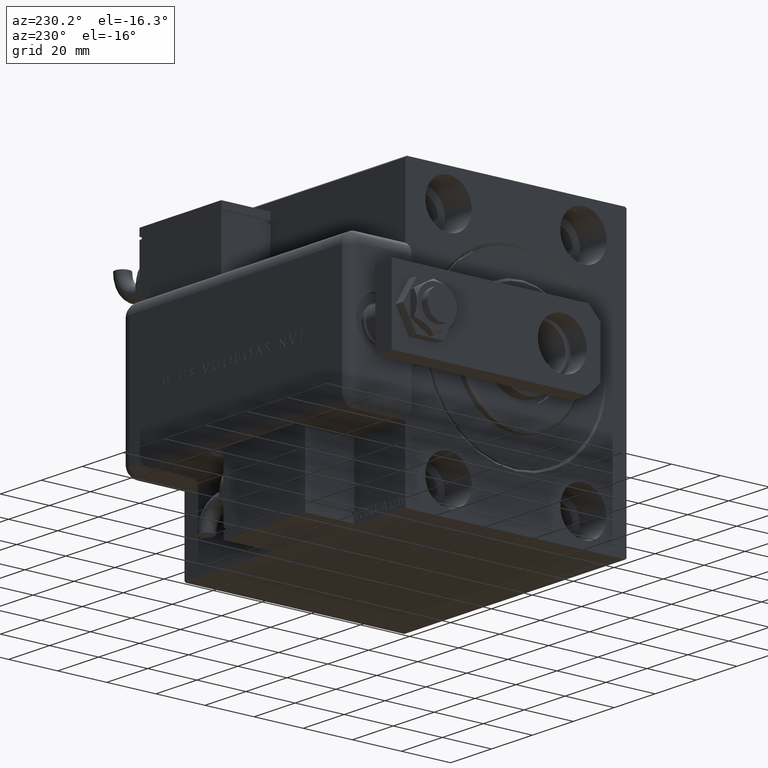
[diagram: clean part render]
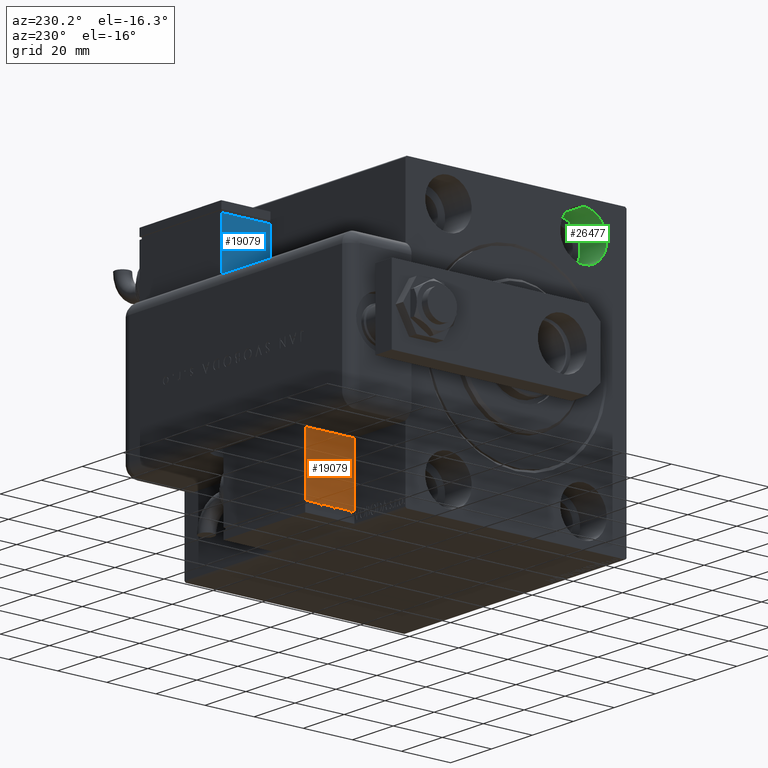
[diagram: same view with three faces highlighted in distinct colors, each labeled with its STEP entity id]
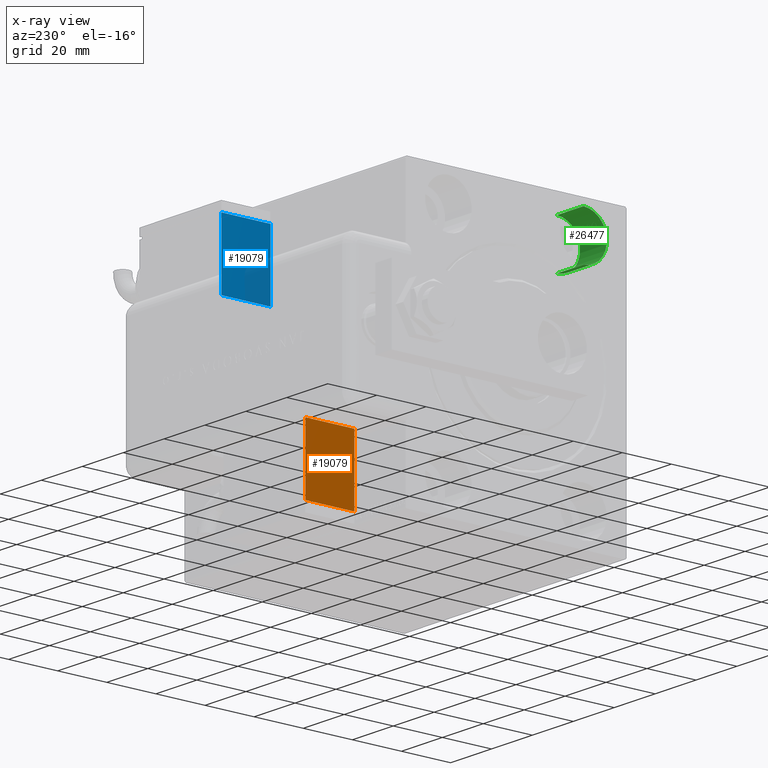
[diagram: x-ray of the same camera — body ghosted, the three highlighted faces saturated]
A machine part, auxiliary view with three faces highlighted in distinct colors.
The next image is the same camera in x-ray (body ghosted, the three faces saturated) — at least one of them is partly hidden behind the body in this view.
Their STEP definitions:

[orange] entity #19079 — the highlighted planar face has unit normal (1, 0, -0).
#937 = CARTESIAN_POINT ( 'NONE',  ( 20.00000000000005329, -13.49999999999996092, -10.00000000000000000 ) ) ;
#2348 = VECTOR ( 'NONE', #38507, 1000.000000000000000 ) ;
#3201 = ORIENTED_EDGE ( 'NONE', *, *, #44204, .T. ) ;
#4578 = DIRECTION ( 'NONE',  ( 1.284980352575412699E-16, 1.000000000000000000, 0.000000000000000000 ) ) ;
#5640 = ORIENTED_EDGE ( 'NONE', *, *, #32843, .T. ) ;
#8268 = LINE ( 'NONE', #45225, #22323 ) ;
#10745 = DIRECTION ( 'NONE',  ( -1.000000000000000000, 1.284980352575412699E-16, 0.000000000000000000 ) ) ;
#13481 = VECTOR ( 'NONE', #4578, 1000.000000000000000 ) ;
#15394 = VERTEX_POINT ( 'NONE', #26583 ) ;
#15872 = CARTESIAN_POINT ( 'NONE',  ( 20.00000000000005329, -13.49999999999996092, -10.00000000000000000 ) ) ;
#16111 = CARTESIAN_POINT ( 'NONE',  ( 20.00000000000005329, -13.49999999999996092, 10.00000000000000000 ) ) ;
#16881 = EDGE_CURVE ( 'NONE', #15394, #42015, #8268, .T. ) ;
#17785 = LINE ( 'NONE', #27479, #27538 ) ;
#18566 = ORIENTED_EDGE ( 'NONE', *, *, #42788, .F. ) ;
#19009 = VERTEX_POINT ( 'NONE', #15872 ) ;
#19079 = ADVANCED_FACE ( 'NONE', ( #24680 ), #52520, .F. ) ;
#20009 = CARTESIAN_POINT ( 'NONE',  ( 20.00000000000005329, -13.49999999999996092, 10.00000000000000000 ) ) ;
#21061 = AXIS2_PLACEMENT_3D ( 'NONE', #38320, #10745, #48288 ) ;
#22323 = VECTOR ( 'NONE', #40709, 1000.000000000000000 ) ;
#23347 = LINE ( 'NONE', #20009, #2348 ) ;
#23934 = LINE ( 'NONE', #937, #13481 ) ;
#24680 = FACE_OUTER_BOUND ( 'NONE', #58937, .T. ) ;
#26583 = CARTESIAN_POINT ( 'NONE',  ( 20.00000000000005684, 13.50000000000003730, 10.00000000000000000 ) ) ;
#27479 = CARTESIAN_POINT ( 'NONE',  ( 20.00000000000005329, -13.49999999999996092, 10.00000000000000000 ) ) ;
#27526 = VERTEX_POINT ( 'NONE', #16111 ) ;
#27538 = VECTOR ( 'NONE', #54413, 1000.000000000000000 ) ;
#32843 = EDGE_CURVE ( 'NONE', #19009, #42015, #23934, .T. ) ;
#38320 = CARTESIAN_POINT ( 'NONE',  ( 20.00000000000005329, -13.49999999999996092, 10.00000000000000000 ) ) ;
#38507 = DIRECTION ( 'NONE',  ( 1.284980352575412699E-16, 1.000000000000000000, 0.000000000000000000 ) ) ;
#40709 = DIRECTION ( 'NONE',  ( -0.000000000000000000, -0.000000000000000000, -1.000000000000000000 ) ) ;
#42015 = VERTEX_POINT ( 'NONE', #45786 ) ;
#42788 = EDGE_CURVE ( 'NONE', #27526, #15394, #23347, .T. ) ;
#44204 = EDGE_CURVE ( 'NONE', #27526, #19009, #17785, .T. ) ;
#45225 = CARTESIAN_POINT ( 'NONE',  ( 20.00000000000005684, 13.50000000000003730, 10.00000000000000000 ) ) ;
#45786 = CARTESIAN_POINT ( 'NONE',  ( 20.00000000000005684, 13.50000000000003730, -10.00000000000000000 ) ) ;
#47603 = ORIENTED_EDGE ( 'NONE', *, *, #16881, .F. ) ;
#48288 = DIRECTION ( 'NONE',  ( -1.284980352575412699E-16, -1.000000000000000000, 0.000000000000000000 ) ) ;
#52520 = PLANE ( 'NONE',  #21061 ) ;
#54413 = DIRECTION ( 'NONE',  ( -0.000000000000000000, -0.000000000000000000, -1.000000000000000000 ) ) ;
#58937 = EDGE_LOOP ( 'NONE', ( #5640, #47603, #18566, #3201 ) ) ;

[blue] entity #19079 — the highlighted planar face has unit normal (1, -0, -0).
#937 = CARTESIAN_POINT ( 'NONE',  ( 20.00000000000005329, -13.49999999999996092, -10.00000000000000000 ) ) ;
#2348 = VECTOR ( 'NONE', #38507, 1000.000000000000000 ) ;
#3201 = ORIENTED_EDGE ( 'NONE', *, *, #44204, .T. ) ;
#4578 = DIRECTION ( 'NONE',  ( 1.284980352575412699E-16, 1.000000000000000000, 0.000000000000000000 ) ) ;
#5640 = ORIENTED_EDGE ( 'NONE', *, *, #32843, .T. ) ;
#8268 = LINE ( 'NONE', #45225, #22323 ) ;
#10745 = DIRECTION ( 'NONE',  ( -1.000000000000000000, 1.284980352575412699E-16, 0.000000000000000000 ) ) ;
#13481 = VECTOR ( 'NONE', #4578, 1000.000000000000000 ) ;
#15394 = VERTEX_POINT ( 'NONE', #26583 ) ;
#15872 = CARTESIAN_POINT ( 'NONE',  ( 20.00000000000005329, -13.49999999999996092, -10.00000000000000000 ) ) ;
#16111 = CARTESIAN_POINT ( 'NONE',  ( 20.00000000000005329, -13.49999999999996092, 10.00000000000000000 ) ) ;
#16881 = EDGE_CURVE ( 'NONE', #15394, #42015, #8268, .T. ) ;
#17785 = LINE ( 'NONE', #27479, #27538 ) ;
#18566 = ORIENTED_EDGE ( 'NONE', *, *, #42788, .F. ) ;
#19009 = VERTEX_POINT ( 'NONE', #15872 ) ;
#19079 = ADVANCED_FACE ( 'NONE', ( #24680 ), #52520, .F. ) ;
#20009 = CARTESIAN_POINT ( 'NONE',  ( 20.00000000000005329, -13.49999999999996092, 10.00000000000000000 ) ) ;
#21061 = AXIS2_PLACEMENT_3D ( 'NONE', #38320, #10745, #48288 ) ;
#22323 = VECTOR ( 'NONE', #40709, 1000.000000000000000 ) ;
#23347 = LINE ( 'NONE', #20009, #2348 ) ;
#23934 = LINE ( 'NONE', #937, #13481 ) ;
#24680 = FACE_OUTER_BOUND ( 'NONE', #58937, .T. ) ;
#26583 = CARTESIAN_POINT ( 'NONE',  ( 20.00000000000005684, 13.50000000000003730, 10.00000000000000000 ) ) ;
#27479 = CARTESIAN_POINT ( 'NONE',  ( 20.00000000000005329, -13.49999999999996092, 10.00000000000000000 ) ) ;
#27526 = VERTEX_POINT ( 'NONE', #16111 ) ;
#27538 = VECTOR ( 'NONE', #54413, 1000.000000000000000 ) ;
#32843 = EDGE_CURVE ( 'NONE', #19009, #42015, #23934, .T. ) ;
#38320 = CARTESIAN_POINT ( 'NONE',  ( 20.00000000000005329, -13.49999999999996092, 10.00000000000000000 ) ) ;
#38507 = DIRECTION ( 'NONE',  ( 1.284980352575412699E-16, 1.000000000000000000, 0.000000000000000000 ) ) ;
#40709 = DIRECTION ( 'NONE',  ( -0.000000000000000000, -0.000000000000000000, -1.000000000000000000 ) ) ;
#42015 = VERTEX_POINT ( 'NONE', #45786 ) ;
#42788 = EDGE_CURVE ( 'NONE', #27526, #15394, #23347, .T. ) ;
#44204 = EDGE_CURVE ( 'NONE', #27526, #19009, #17785, .T. ) ;
#45225 = CARTESIAN_POINT ( 'NONE',  ( 20.00000000000005684, 13.50000000000003730, 10.00000000000000000 ) ) ;
#45786 = CARTESIAN_POINT ( 'NONE',  ( 20.00000000000005684, 13.50000000000003730, -10.00000000000000000 ) ) ;
#47603 = ORIENTED_EDGE ( 'NONE', *, *, #16881, .F. ) ;
#48288 = DIRECTION ( 'NONE',  ( -1.284980352575412699E-16, -1.000000000000000000, 0.000000000000000000 ) ) ;
#52520 = PLANE ( 'NONE',  #21061 ) ;
#54413 = DIRECTION ( 'NONE',  ( -0.000000000000000000, -0.000000000000000000, -1.000000000000000000 ) ) ;
#58937 = EDGE_LOOP ( 'NONE', ( #5640, #47603, #18566, #3201 ) ) ;

[green] entity #26477 — the highlighted cylindrical surface (edge-blend (fillet) strip) has radius 9.5 mm, axis along (-1, -0, -0).
#55 = DIRECTION ( 'NONE',  ( 0.000000000000000000, 0.000000000000000000, 1.000000000000000000 ) ) ;
#778 = DIRECTION ( 'NONE',  ( -1.000000000000000000, -0.000000000000000000, -0.000000000000000000 ) ) ;
#4008 = LINE ( 'NONE', #49724, #31482 ) ;
#4184 = DIRECTION ( 'NONE',  ( 0.000000000000000000, 0.000000000000000000, 1.000000000000000000 ) ) ;
#9560 = CARTESIAN_POINT ( 'NONE',  ( 13.00000000000000000, -27.49999999999998934, 54.50000000000000711 ) ) ;
#9906 = VERTEX_POINT ( 'NONE', #49728 ) ;
#14255 = CARTESIAN_POINT ( 'NONE',  ( 13.00000000000000000, -27.49999999999998934, 45.00000000000000711 ) ) ;
#15144 = AXIS2_PLACEMENT_3D ( 'NONE', #22336, #46264, #4184 ) ;
#16925 = DIRECTION ( 'NONE',  ( 0.000000000000000000, 0.000000000000000000, 1.000000000000000000 ) ) ;
#18038 = CIRCLE ( 'NONE', #15144, 9.500000000000001776 ) ;
#18270 = ORIENTED_EDGE ( 'NONE', *, *, #53751, .F. ) ;
#21212 = ORIENTED_EDGE ( 'NONE', *, *, #29786, .F. ) ;
#21478 = FACE_OUTER_BOUND ( 'NONE', #53362, .T. ) ;
#22336 = CARTESIAN_POINT ( 'NONE',  ( 0.000000000000000000, -27.49999999999998934, 45.00000000000000711 ) ) ;
#23345 = DIRECTION ( 'NONE',  ( -1.000000000000000000, -0.000000000000000000, -0.000000000000000000 ) ) ;
#23481 = CARTESIAN_POINT ( 'NONE',  ( 13.00000000000000000, -27.49999999999998934, 35.50000000000000711 ) ) ;
#25800 = VECTOR ( 'NONE', #778, 1000.000000000000000 ) ;
#26076 = EDGE_CURVE ( 'NONE', #53562, #9906, #38334, .T. ) ;
#26477 = ADVANCED_FACE ( 'NONE', ( #21478 ), #35713, .F. ) ;
#28605 = VERTEX_POINT ( 'NONE', #9560 ) ;
#29786 = EDGE_CURVE ( 'NONE', #28605, #43235, #4008, .T. ) ;
#31176 = DIRECTION ( 'NONE',  ( -1.000000000000000000, -0.000000000000000000, -0.000000000000000000 ) ) ;
#31482 = VECTOR ( 'NONE', #23345, 1000.000000000000000 ) ;
#32766 = DIRECTION ( 'NONE',  ( -1.000000000000000000, 0.000000000000000000, 0.000000000000000000 ) ) ;
#35713 = CYLINDRICAL_SURFACE ( 'NONE', #38185, 9.500000000000001776 ) ;
#37223 = ORIENTED_EDGE ( 'NONE', *, *, #49429, .T. ) ;
#37459 = CIRCLE ( 'NONE', #48091, 9.500000000000001776 ) ;
#38185 = AXIS2_PLACEMENT_3D ( 'NONE', #53276, #31176, #16925 ) ;
#38334 = LINE ( 'NONE', #23481, #25800 ) ;
#40078 = CARTESIAN_POINT ( 'NONE',  ( 13.00000000000000000, -27.49999999999998934, 35.50000000000000711 ) ) ;
#41734 = ORIENTED_EDGE ( 'NONE', *, *, #26076, .T. ) ;
#42302 = CARTESIAN_POINT ( 'NONE',  ( 0.000000000000000000, -27.49999999999998934, 54.50000000000000711 ) ) ;
#43235 = VERTEX_POINT ( 'NONE', #42302 ) ;
#46264 = DIRECTION ( 'NONE',  ( -1.000000000000000000, 0.000000000000000000, 0.000000000000000000 ) ) ;
#48091 = AXIS2_PLACEMENT_3D ( 'NONE', #14255, #32766, #55 ) ;
#49429 = EDGE_CURVE ( 'NONE', #9906, #43235, #18038, .T. ) ;
#49724 = CARTESIAN_POINT ( 'NONE',  ( 13.00000000000000000, -27.49999999999998934, 54.50000000000000711 ) ) ;
#49728 = CARTESIAN_POINT ( 'NONE',  ( 0.000000000000000000, -27.49999999999998934, 35.50000000000000711 ) ) ;
#53276 = CARTESIAN_POINT ( 'NONE',  ( 13.00000000000000000, -27.49999999999998934, 45.00000000000000711 ) ) ;
#53362 = EDGE_LOOP ( 'NONE', ( #18270, #41734, #37223, #21212 ) ) ;
#53562 = VERTEX_POINT ( 'NONE', #40078 ) ;
#53751 = EDGE_CURVE ( 'NONE', #53562, #28605, #37459, .T. ) ;